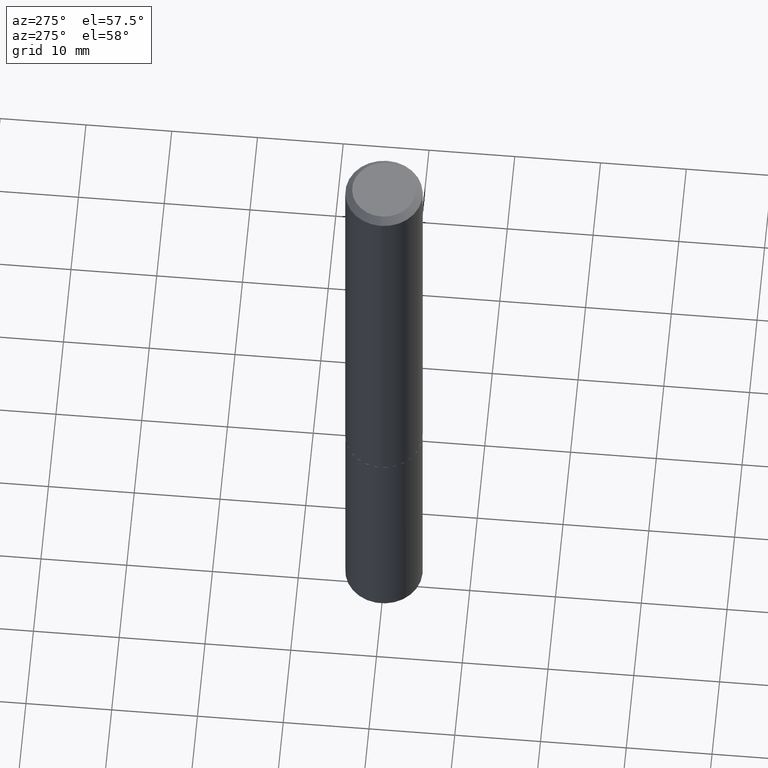
[diagram: clean part render]
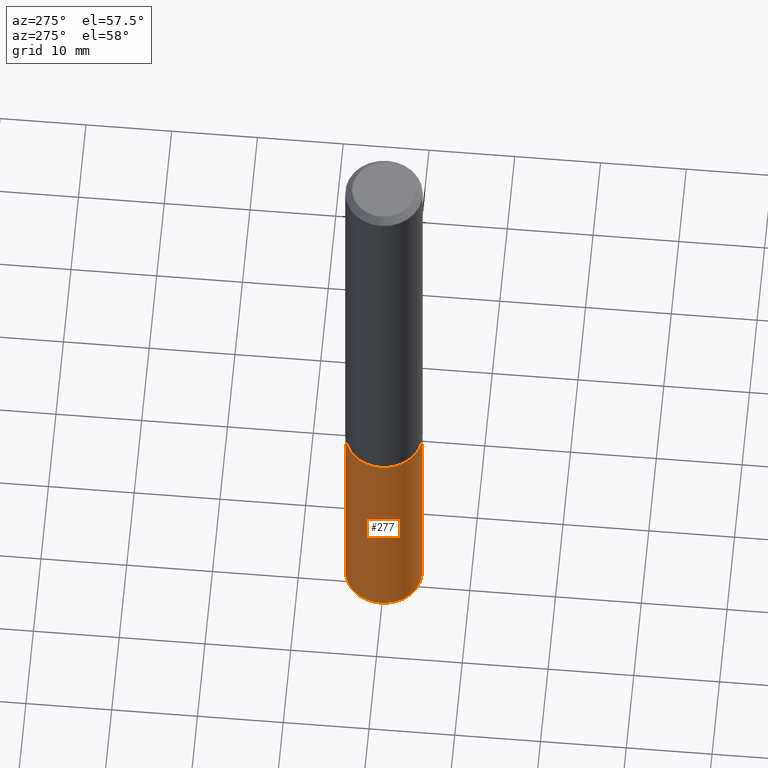
[diagram: same view with one face highlighted and labeled with its STEP entity id]
A machine part, auxiliary view. The second image highlights one B-rep face of the part: STEP entity #277.
In plain terms, the highlighted cylindrical surface (partial cylindrical patch) has radius 4.4996 mm, axis along (-0, 0, 1).
Its self-contained STEP definition (entity closure, byte-faithful):
#11 = ORIENTED_EDGE ( 'NONE', *, *, #26, .T. ) ;
#13 = EDGE_CURVE ( 'NONE', #170, #165, #106, .T. ) ;
#15 = ORIENTED_EDGE ( 'NONE', *, *, #361, .T. ) ;
#22 = FACE_OUTER_BOUND ( 'NONE', #157, .T. ) ;
#26 = EDGE_CURVE ( 'NONE', #312, #189, #273, .T. ) ;
#65 = LINE ( 'NONE', #304, #244 ) ;
#76 = CARTESIAN_POINT ( 'NONE',  ( 7.930082120451756435E-29, -1.132105601428266761E-14, -3.242622672999742495 ) ) ;
#84 = CYLINDRICAL_SURFACE ( 'NONE', #86, 0.1771500000000000019 ) ;
#86 = AXIS2_PLACEMENT_3D ( 'NONE', #327, #101, #200 ) ;
#101 = DIRECTION ( 'NONE',  ( -2.445771156139322232E-29, 3.491048356500061313E-15, 1.000000000000000000 ) ) ;
#103 = CARTESIAN_POINT ( 'NONE',  ( -1.237031838352071118E-15, -0.1771500000000073016, -2.086600000000000232 ) ) ;
#106 = CIRCLE ( 'NONE', #230, 0.1771500000000000019 ) ;
#132 = DIRECTION ( 'NONE',  ( -2.445771156139322232E-29, 3.491048356500061313E-15, 1.000000000000000000 ) ) ;
#157 = EDGE_LOOP ( 'NONE', ( #344, #11, #15, #285 ) ) ;
#161 = DIRECTION ( 'NONE',  ( -2.445771156139322232E-29, 3.491048356500061313E-15, 1.000000000000000000 ) ) ;
#165 = VERTEX_POINT ( 'NONE', #103 ) ;
#170 = VERTEX_POINT ( 'NONE', #266 ) ;
#189 = VERTEX_POINT ( 'NONE', #262 ) ;
#193 = DIRECTION ( 'NONE',  ( -6.982962677686265922E-15, -1.000000000000000000, 3.084220145260246224E-15 ) ) ;
#198 = CARTESIAN_POINT ( 'NONE',  ( -1.237031838352071118E-15, -0.1771500000000073016, -2.086600000000000232 ) ) ;
#200 = DIRECTION ( 'NONE',  ( -6.982962677686265922E-15, -1.000000000000000000, 3.084220145260246224E-15 ) ) ;
#220 = DIRECTION ( 'NONE',  ( -6.982962677686265922E-15, -1.000000000000000000, 3.084220145260246224E-15 ) ) ;
#230 = AXIS2_PLACEMENT_3D ( 'NONE', #282, #132, #220 ) ;
#232 = DIRECTION ( 'NONE',  ( -2.445771156139322512E-29, 3.491048356500061707E-15, 1.000000000000000000 ) ) ;
#239 = AXIS2_PLACEMENT_3D ( 'NONE', #76, #161, #193 ) ;
#244 = VECTOR ( 'NONE', #310, 39.37007874015748143 ) ;
#262 = CARTESIAN_POINT ( 'NONE',  ( -1.237031838352043113E-15, -0.1771500000000113817, -3.242622672999742051 ) ) ;
#266 = CARTESIAN_POINT ( 'NONE',  ( 1.258726456399096971E-15, 0.1771499999999927299, -2.086600000000001121 ) ) ;
#273 = CIRCLE ( 'NONE', #239, 0.1771500000000000019 ) ;
#277 = ADVANCED_FACE ( 'NONE', ( #22 ), #84, .T. ) ;
#282 = CARTESIAN_POINT ( 'NONE',  ( 5.102715210985907397E-29, -7.285324961630108994E-15, -2.086600000000000676 ) ) ;
#285 = ORIENTED_EDGE ( 'NONE', *, *, #13, .F. ) ;
#304 = CARTESIAN_POINT ( 'NONE',  ( 1.258726456399068374E-15, 0.1771499999999927299, -2.086600000000001121 ) ) ;
#310 = DIRECTION ( 'NONE',  ( -2.445771156139322512E-29, 3.491048356500061707E-15, 1.000000000000000000 ) ) ;
#312 = VERTEX_POINT ( 'NONE', #372 ) ;
#316 = EDGE_CURVE ( 'NONE', #312, #170, #65, .T. ) ;
#322 = VECTOR ( 'NONE', #232, 39.37007874015748143 ) ;
#323 = LINE ( 'NONE', #198, #322 ) ;
#327 = CARTESIAN_POINT ( 'NONE',  ( 5.102715210985907397E-29, -7.285324961630108994E-15, -2.086600000000000676 ) ) ;
#344 = ORIENTED_EDGE ( 'NONE', *, *, #316, .F. ) ;
#361 = EDGE_CURVE ( 'NONE', #189, #165, #323, .T. ) ;
#372 = CARTESIAN_POINT ( 'NONE',  ( 1.258726456399097168E-15, 0.1771499999999887054, -3.242622672999742939 ) ) ;